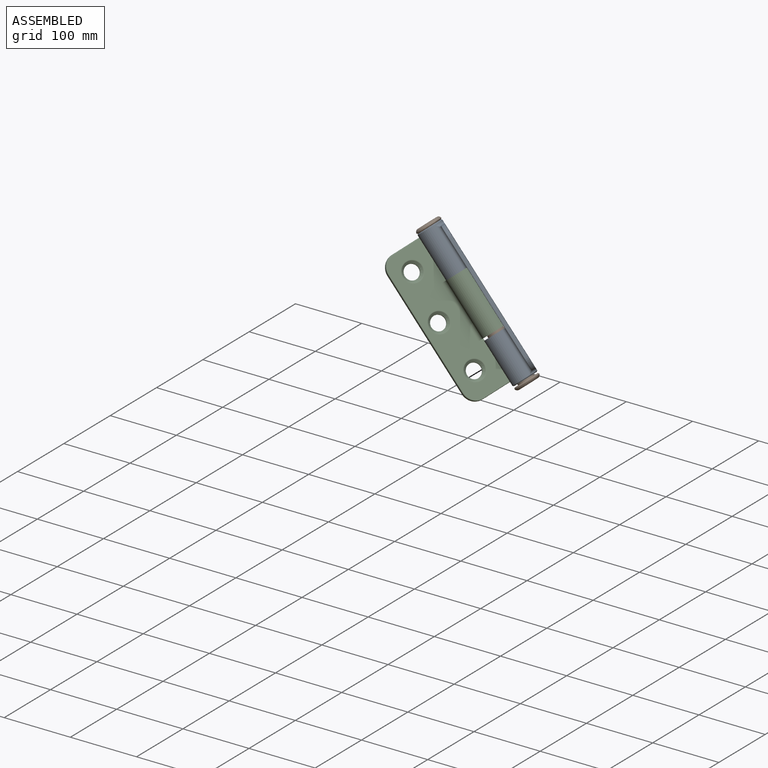
[diagram: assembled view]
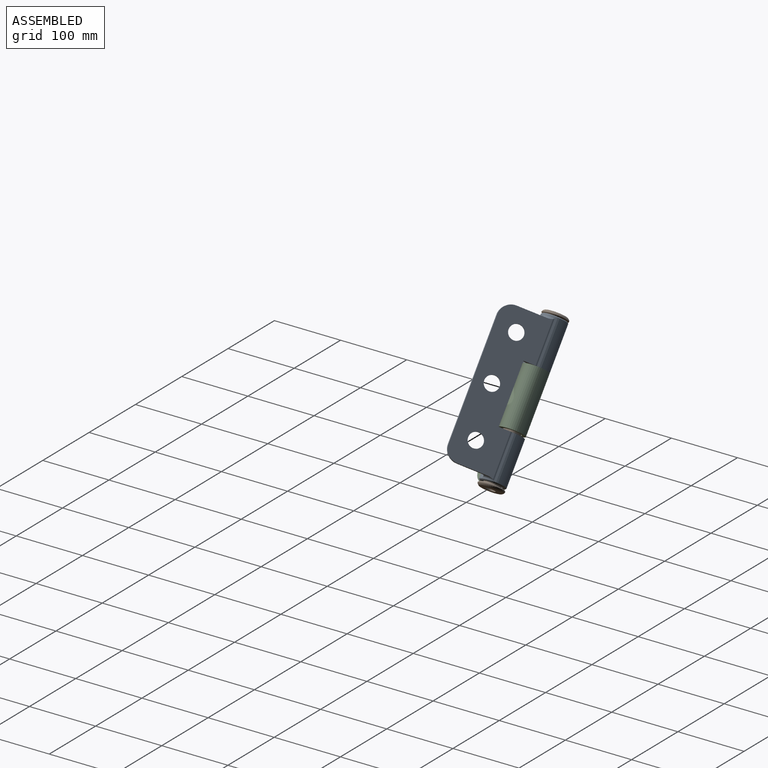
[diagram: assembled view, second angle]
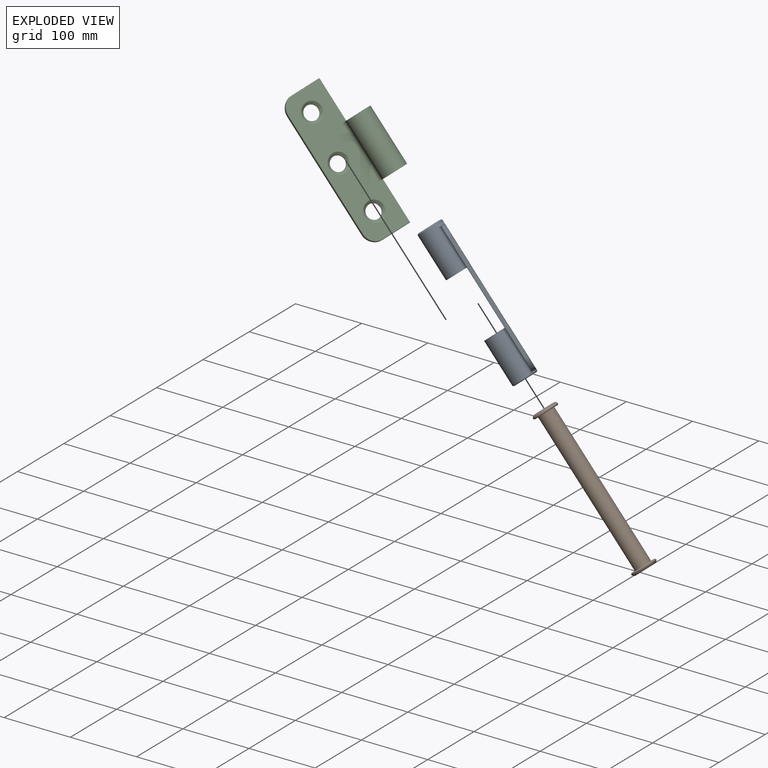
[diagram: exploded view]
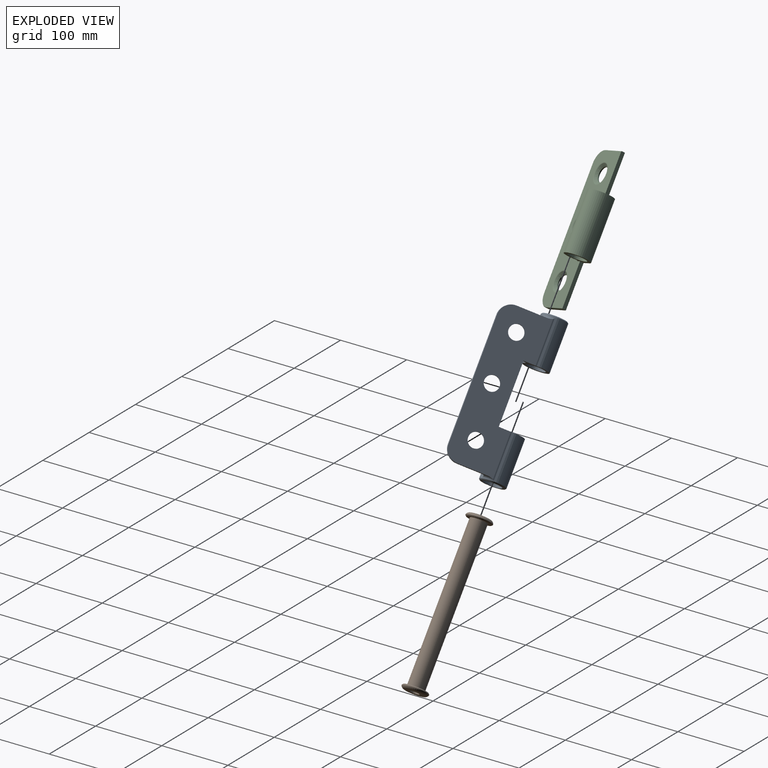
[diagram: exploded view, second angle]
ASSEMBLY  parts=3 mates=5
PART A: 46 faces, bbox 92.5x44.5x224.3 mm
  f0: cylinder r=18.13mm len=66.14mm, axis (0,0,-1), area 6342.7mm2, adj f1,f12,f13,f14,f45
  f1: plane 39.34x36.32mm, normal (0,0,-1), area 575.1mm2, adj f0,f2,f3,f4,f7,f12,f13,f32
  f2: cylinder r=13.05mm len=67.41mm, axis (0,0,-1), area 5526.8mm2, adj f1,f43
  f3: plane 209.2x51.69mm, normal (0,-1,0), area 8420mm2, adj f1,f7,f8,f13,f16,f28,f29,f30
  f4: plane 214.2x67.57mm, normal (0,1,0), area 11655.5mm2, adj f1,f5,f6,f7,f8,f14,f18,f19
  f5: plane 41.47x5.15mm, normal (0,0,1), area 175mm2, adj f4,f14,f26,f38,f40
  f6: plane 41.47x5.15mm, normal (0,0,-1), area 175mm2, adj f4,f18,f27,f34,f35
  f7: plane 88.47x5.51mm, normal (-1,0,0), area 487.7mm2, adj f1,f3,f4,f8
  f8: plane 17.06x9.25mm, normal (0,0,1), area 70.5mm2, adj f3,f4,f7,f15,f16,f31
  f9: cylinder r=18.13mm len=65.85mm, axis (0,0,-1), area 6288.6mm2, adj f10,f16,f17,f18,f44
  f10: plane 36.26x36.26mm, normal (0,0,1), area 497.5mm2, adj f9,f11,f15
  f11: cylinder r=13.05mm len=67.12mm, axis (0,0,-1), area 5502.7mm2, adj f10,f42
  f12: cylinder r=3.81mm len=64.65mm, axis (0,0,-1), area 94.1mm2, adj f0,f1,f14,f32
  f13: cylinder r=3.81mm len=64.65mm, axis (0,0,-1), area 462.3mm2, adj f0,f1,f3,f36,f38
  f14: torus R=21.94mm, axis (0,0,-1), area 75.7mm2, adj f0,f4,f5,f12,f32,f36
  f15: torus R=18.55mm, axis (0,0,1), area 7mm2, adj f8,f10,f16,f17,f31
  f16: cylinder r=3.81mm len=65.77mm, axis (0,0,-1), area 470.7mm2, adj f3,f8,f9,f15,f33,f34
  f17: cylinder r=3.81mm len=65.77mm, axis (0,0,1), area 95.8mm2, adj f9,f15,f18,f31
  f18: torus R=21.94mm, axis (0,0,-1), area 75.7mm2, adj f4,f6,f9,f17,f31,f33
  f19: plane 173.14x4.5mm, normal (1,0,0), area 778.5mm2, adj f4,f26,f27,f39
  f20: cylinder r=10.57mm len=21.14mm, axis (0,1,0), area 113.1mm2, adj f4,f25
  f21: cylinder r=10.57mm len=21.14mm, axis (0,1,0), area 113.1mm2, adj f4,f24
  f22: cylinder r=10.57mm len=21.14mm, axis (0,1,0), area 113.1mm2, adj f4,f23
  f23: cone r=14.38mm half-angle=45deg, axis (0,-1,0), area 357mm2, adj f22,f28
  f24: cone r=14.38mm half-angle=45deg, axis (0,-1,0), area 357mm2, adj f21,f29
  f25: cone r=14.38mm half-angle=45deg, axis (0,-1,0), area 357mm2, adj f20,f30
  f26: cylinder r=19.05mm len=19.05mm, axis (0,-1,0), area 134.5mm2, adj f4,f5,f19,f41
  f27: cylinder r=19.05mm len=19.05mm, axis (0,1,0), area 134.5mm2, adj f4,f6,f19,f37
  f28: torus R=15.12mm, axis (0,-1,0), area 126.8mm2, adj f3,f23
  f29: torus R=15.12mm, axis (0,-1,0), area 126.8mm2, adj f3,f24
  f30: torus R=15.12mm, axis (0,-1,0), area 126.8mm2, adj f3,f25
  f31: cylinder r=5.08mm len=64.18mm, axis (0,0,1), area 80.5mm2, adj f4,f8,f15,f17,f18
  f32: cylinder r=5.08mm len=63.08mm, axis (0,0,-1), area 79.2mm2, adj f1,f4,f12,f14
  f33: bspline ~5.98x4.83mm, area 6.8mm2, adj f16,f18,f34
  f34: torus R=4.83mm, axis (0,0,-1), area 3.5mm2, adj f6,f16,f33,f35
  f35: cylinder r=1.02mm len=33.66mm, axis (-1,0,0), area 53.7mm2, adj f3,f6,f34,f37
  f36: bspline ~5.98x4.83mm, area 6.8mm2, adj f13,f14,f38
  f37: torus R=18.03mm, axis (0,-1,0), area 46.8mm2, adj f3,f27,f35,f39
  f38: torus R=4.83mm, axis (0,0,-1), area 3.5mm2, adj f5,f13,f36,f40
  f39: cylinder r=1.02mm len=173.14mm, axis (0,0,-1), area 276.3mm2, adj f3,f19,f37,f41
  f40: cylinder r=1.02mm len=33.66mm, axis (1,0,0), area 53.7mm2, adj f3,f5,f38,f41
  f41: torus R=18.03mm, axis (0,-1,0), area 46.8mm2, adj f3,f26,f39,f40
  f42: plane 33.72x33.72mm, normal (0,0,-1), area 358mm2, adj f11,f44
  f43: plane 33.72x33.72mm, normal (0,0,1), area 358mm2, adj f2,f45
  f44: cone r=18.13mm half-angle=45deg, axis (0,0,1), area 197.4mm2, adj f9,f42
  f45: cone r=16.86mm half-angle=45deg, axis (0,0,-1), area 197.4mm2, adj f0,f43
PART B: 14 faces, bbox 39.6x39.6x235.4 mm
  f0: plane 34.02x34.02mm, normal (0,0,1), area 460.9mm2, adj f2,f13
  f1: plane 34.04x34.04mm, normal (0,0,-1), area 462mm2, adj f2,f12
  f2: cylinder r=11.94mm len=224.96mm, axis (0,0,-1), area 16878.6mm2, adj f0,f1
  f3: plane 26.42x26.42mm, normal (0,0,-1), area 400.4mm2, adj f5,f10
  f4: plane 26.42x26.42mm, normal (0,0,1), area 400.4mm2, adj f5,f11
  f5: cylinder r=6.86mm len=235.12mm, axis (0,0,-1), area 10136.2mm2, adj f3,f4
  f6: cone r=18.29mm half-angle=45deg, axis (0,0,1), area 92.3mm2, adj f9,f10
  f7: cone r=13.21mm half-angle=45deg, axis (0,0,-1), area 76.4mm2, adj f8,f11
  f8: torus R=14.74mm, axis (0,0,1), area 296.3mm2, adj f7,f12
  f9: torus R=14.74mm, axis (0,0,-1), area 271.7mm2, adj f6,f13
  f10: torus R=14.12mm, axis (0,0,-1), area 350.2mm2, adj f3,f6
  f11: torus R=14.23mm, axis (0,0,1), area 361.9mm2, adj f4,f7
  f12: cone r=18.29mm half-angle=43.7deg, axis (0,0,1), area 203.7mm2, adj f1,f8
  f13: cone r=17.01mm half-angle=42deg, axis (0,0,-1), area 209.3mm2, adj f0,f9
PART C: 30 faces, bbox 94.3x36.3x214.4 mm
  f0: plane 63.58x5.51mm, normal (1,0,0), area 350.3mm2, adj f1,f2,f5,f10,f24
  f1: plane 209.2x59.34mm, normal (0,-1,0), area 9467.4mm2, adj f0,f3,f7,f10,f20,f21,f22,f24
  f2: plane 211.24x69.08mm, normal (0,1,0), area 12284.3mm2, adj f0,f3,f4,f5,f6,f7,f10,f11
  f3: plane 40.06x36.32mm, normal (0,0,1), area 542.1mm2, adj f1,f2,f7,f8,f9,f19,f23,f29
  f4: plane 41.31x4.5mm, normal (0,0,1), area 185.7mm2, adj f2,f7,f17,f26
  f5: plane 41.31x4.5mm, normal (0,0,-1), area 185.7mm2, adj f0,f2,f18,f24
  f6: plane 173.14x4.5mm, normal (-1,0,0), area 778.5mm2, adj f2,f17,f18,f27
  f7: plane 62.49x5.51mm, normal (1,0,0), area 344.2mm2, adj f1,f2,f3,f4,f26
  f8: cylinder r=18.13mm len=85.17mm, axis (0,0,-1), area 8001mm2, adj f3,f10,f19,f29
  f9: cylinder r=13.05mm len=85.17mm, axis (0,0,-1), area 6982.2mm2, adj f3,f10
  f10: plane 40.06x36.32mm, normal (0,0,-1), area 542.1mm2, adj f0,f1,f2,f8,f9,f19,f23,f29
  f11: cylinder r=10.57mm len=21.14mm, axis (0,1,0), area 113.1mm2, adj f2,f16
  f12: cylinder r=10.57mm len=21.14mm, axis (0,1,0), area 113.1mm2, adj f2,f14
  f13: cylinder r=10.57mm len=21.14mm, axis (0,1,0), area 113.1mm2, adj f2,f15
  f14: cone r=10.57mm half-angle=45deg, axis (0,-1,0), area 357mm2, adj f12,f20
  f15: cone r=10.57mm half-angle=45deg, axis (0,-1,0), area 357mm2, adj f13,f21
  f16: cone r=10.57mm half-angle=45deg, axis (0,-1,0), area 357mm2, adj f11,f22
  f17: cylinder r=19.05mm len=19.05mm, axis (0,1,0), area 134.5mm2, adj f2,f4,f6,f28
  f18: cylinder r=19.05mm len=19.05mm, axis (0,-1,0), area 134.5mm2, adj f2,f5,f6,f25
  f19: cylinder r=5.08mm len=85.17mm, axis (0,0,1), area 160.8mm2, adj f3,f8,f10,f23
  f20: torus R=15.12mm, axis (0,1,0), area 126.8mm2, adj f1,f14
  f21: torus R=15.12mm, axis (0,1,0), area 126.8mm2, adj f1,f15
  f22: torus R=15.12mm, axis (0,1,0), area 126.8mm2, adj f1,f16
  f23: cylinder r=5.08mm len=85.17mm, axis (0,0,1), area 101.8mm2, adj f2,f3,f10,f19
  f24: cylinder r=1.02mm len=41.31mm, axis (-1,0,0), area 65.9mm2, adj f0,f1,f5,f25
  f25: torus R=18.03mm, axis (0,1,0), area 46.8mm2, adj f1,f18,f24,f27
  f26: cylinder r=1.02mm len=41.31mm, axis (1,0,0), area 65.9mm2, adj f1,f4,f7,f28
  f27: cylinder r=1.02mm len=173.14mm, axis (0,0,-1), area 276.3mm2, adj f1,f6,f25,f28
  f28: torus R=18.03mm, axis (0,1,0), area 46.8mm2, adj f1,f17,f26,f27
  f29: cylinder r=5.08mm len=85.17mm, axis (0,0,-1), area 824mm2, adj f1,f3,f8,f10
PLACE A rot(axis=(0.29,-0.59,-0.75),61.4deg) t=(-112.61,81.38,18.99)mm
PLACE B rot(axis=(0,-1,0.09),39.6deg) t=(-132.65,124.46,2.37)mm
PLACE C rot(axis=(-0.27,-0.52,0.81),70.6deg) t=(-175.95,128.58,-29.67)mm
MATE cylindrical A.f0 <-> B.f2  axis (0.64,0.02,-0.77) through (-100.49,77.79,-85.7)mm
MATE cylindrical C.f8 <-> B.f2  axis (0.64,0.02,-0.77) through (-156.67,75.88,-17.41)mm
MATE planar A.f0 <-> B.f2  axis (-0.64,-0.02,0.77) through (-199.48,74.43,34.64)mm
MATE cylindrical A.f0 <-> B.f2  axis (0.64,0.02,-0.77) through (-199.48,74.43,34.64)mm
MATE planar A.f1 <-> C.f3  axis (0.64,0.02,-0.77) through (-154.45,75.74,-15.59)mm
